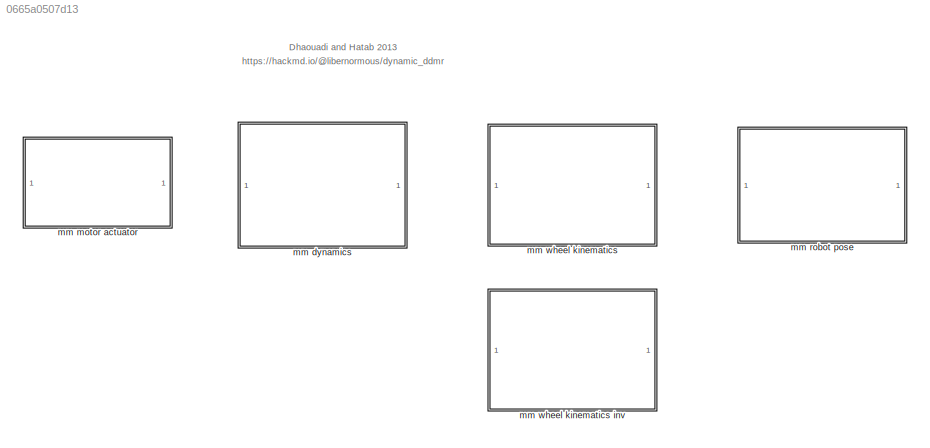
MODEL slx_0665a0507d13
KIND library
CONFIG AbsTol = auto
CONFIG EnableMultiTasking = off
CONFIG FixedStep = auto
CONFIG MaxStep = auto
CONFIG MinStep = auto
CONFIG RelTol = 1e-3
CONFIG SampleTimeConstraint = Unconstrained
CONFIG SolverName = VariableStepAuto
CONFIG StartTime = 0.0
CONFIG StopTime = 10.0
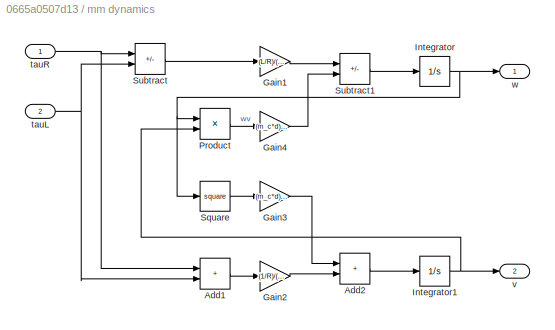
BLOCK [SubSystem] mm dynamics
BLOCK [Sum] mm dynamics/Add1
  IconShape = rectangular
BLOCK [Sum] mm dynamics/Add2
  IconShape = rectangular
BLOCK [Gain] mm dynamics/Gain1
  Gain = (L/R)/(I+2*L^2/R^2*I_w)
BLOCK [Gain] mm dynamics/Gain2
  Gain = (1/R)/(m+2/R^2*I_w)
BLOCK [Gain] mm dynamics/Gain3
  Gain = (m_c*d)/(m+2/R^2*I_w)
BLOCK [Gain] mm dynamics/Gain4
  Gain = (m_c*d)/(I+2*L^2/R^2*I_w)
BLOCK [Integrator] mm dynamics/Integrator
BLOCK [Integrator] mm dynamics/Integrator1
BLOCK [Product] mm dynamics/Product
BLOCK [Math] mm dynamics/Square
  Operator = square
BLOCK [Sum] mm dynamics/Subtract
  IconShape = rectangular
  Inputs = +-
BLOCK [Sum] mm dynamics/Subtract1
  IconShape = rectangular
  Inputs = +-
BLOCK [Inport] mm dynamics/tauL
  Port = 2
BLOCK [Inport] mm dynamics/tauR
BLOCK [Outport] mm dynamics/v
  Port = 2
BLOCK [Outport] mm dynamics/w
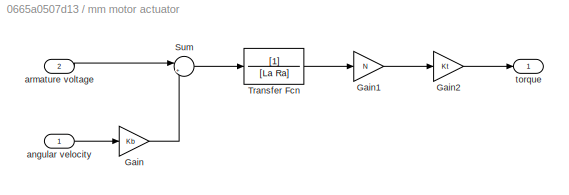
BLOCK [SubSystem] mm motor actuator
BLOCK [Gain] mm motor actuator/Gain
  Gain = Kb
BLOCK [Gain] mm motor actuator/Gain1
  Gain = N
BLOCK [Gain] mm motor actuator/Gain2
  Gain = Kt
BLOCK [Sum] mm motor actuator/Sum
  Inputs = |+-
BLOCK [TransferFcn] mm motor actuator/Transfer Fcn
  Denominator = [La Ra]
BLOCK [Inport] mm motor actuator/angular velocity
BLOCK [Inport] mm motor actuator/armature voltage
  Port = 2
BLOCK [Outport] mm motor actuator/torque
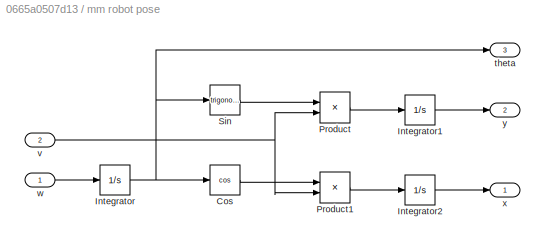
BLOCK [SubSystem] mm robot pose
BLOCK [Trigonometry] mm robot pose/Cos
  Operator = cos
BLOCK [Integrator] mm robot pose/Integrator
  InitialCondition = theta0
BLOCK [Integrator] mm robot pose/Integrator1
  InitialCondition = y0
BLOCK [Integrator] mm robot pose/Integrator2
  InitialCondition = x0
BLOCK [Product] mm robot pose/Product
BLOCK [Product] mm robot pose/Product1
BLOCK [Trigonometry] mm robot pose/Sin
BLOCK [Outport] mm robot pose/theta
  Port = 3
BLOCK [Inport] mm robot pose/v
  Port = 2
BLOCK [Inport] mm robot pose/w
BLOCK [Outport] mm robot pose/x
BLOCK [Outport] mm robot pose/y
  Port = 2
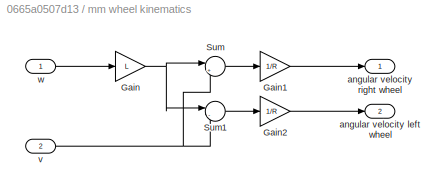
BLOCK [SubSystem] mm wheel kinematics
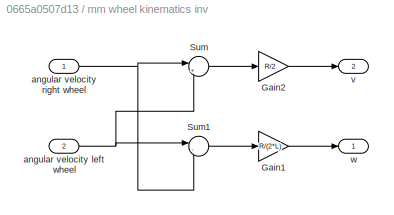
BLOCK [SubSystem] mm wheel kinematics inv
BLOCK [Gain] mm wheel kinematics inv/Gain1
  Gain = R/(2*L)
BLOCK [Gain] mm wheel kinematics inv/Gain2
  Gain = R/2
BLOCK [Sum] mm wheel kinematics inv/Sum
  Inputs = |++
BLOCK [Sum] mm wheel kinematics inv/Sum1
  Inputs = |-+
BLOCK [Inport] mm wheel kinematics inv/angular velocity left wheel
  Port = 2
BLOCK [Inport] mm wheel kinematics inv/angular velocity right wheel
BLOCK [Outport] mm wheel kinematics inv/v
  Port = 2
BLOCK [Outport] mm wheel kinematics inv/w
BLOCK [Gain] mm wheel kinematics/Gain
  Gain = L
BLOCK [Gain] mm wheel kinematics/Gain1
  Gain = 1/R
BLOCK [Gain] mm wheel kinematics/Gain2
  Gain = 1/R
BLOCK [Sum] mm wheel kinematics/Sum
  Inputs = |++
BLOCK [Sum] mm wheel kinematics/Sum1
  Inputs = |-+
BLOCK [Outport] mm wheel kinematics/angular velocity left wheel
  Port = 2
BLOCK [Outport] mm wheel kinematics/angular velocity right wheel
BLOCK [Inport] mm wheel kinematics/v
  Port = 2
BLOCK [Inport] mm wheel kinematics/w
ANNOTATION (root): Dhaouadi and Hatab 2013
ANNOTATION (root): https://hackmd.io/@libernormous/dynamic_ddmr
LINE mm dynamics/Add1:1 -> mm dynamics/Gain2:1
LINE mm dynamics/Add2:1 -> mm dynamics/Integrator1:1
LINE mm dynamics/Gain1:1 -> mm dynamics/Subtract1:1
LINE mm dynamics/Gain2:1 -> mm dynamics/Add2:2
LINE mm dynamics/Gain3:1 -> mm dynamics/Add2:1
LINE mm dynamics/Gain4:1 -> mm dynamics/Subtract1:2
NET mm dynamics/Integrator1:1 -> mm dynamics/Product:2, mm dynamics/v:1
NET mm dynamics/Integrator:1 -> mm dynamics/Product:1, mm dynamics/Square:1, mm dynamics/w:1
LINE mm dynamics/Product:1 -> mm dynamics/Gain4:1
LINE mm dynamics/Square:1 -> mm dynamics/Gain3:1
LINE mm dynamics/Subtract1:1 -> mm dynamics/Integrator:1
LINE mm dynamics/Subtract:1 -> mm dynamics/Gain1:1
NET mm dynamics/tauL:1 -> mm dynamics/Add1:2, mm dynamics/Subtract:2
NET mm dynamics/tauR:1 -> mm dynamics/Add1:1, mm dynamics/Subtract:1
LINE mm motor actuator/Gain1:1 -> mm motor actuator/Gain2:1
LINE mm motor actuator/Gain2:1 -> mm motor actuator/torque:1
LINE mm motor actuator/Gain:1 -> mm motor actuator/Sum:2
LINE mm motor actuator/Sum:1 -> mm motor actuator/Transfer Fcn:1
LINE mm motor actuator/Transfer Fcn:1 -> mm motor actuator/Gain1:1
LINE mm motor actuator/angular velocity:1 -> mm motor actuator/Gain:1
LINE mm motor actuator/armature voltage:1 -> mm motor actuator/Sum:1
LINE mm robot pose/Cos:1 -> mm robot pose/Product1:1
LINE mm robot pose/Integrator1:1 -> mm robot pose/y:1
LINE mm robot pose/Integrator2:1 -> mm robot pose/x:1
NET mm robot pose/Integrator:1 -> mm robot pose/Cos:1, mm robot pose/Sin:1, mm robot pose/theta:1
LINE mm robot pose/Product1:1 -> mm robot pose/Integrator2:1
LINE mm robot pose/Product:1 -> mm robot pose/Integrator1:1
LINE mm robot pose/Sin:1 -> mm robot pose/Product:1
NET mm robot pose/v:1 -> mm robot pose/Product1:2, mm robot pose/Product:2
LINE mm robot pose/w:1 -> mm robot pose/Integrator:1
LINE mm wheel kinematics inv/Gain1:1 -> mm wheel kinematics inv/w:1
LINE mm wheel kinematics inv/Gain2:1 -> mm wheel kinematics inv/v:1
LINE mm wheel kinematics inv/Sum1:1 -> mm wheel kinematics inv/Gain1:1
LINE mm wheel kinematics inv/Sum:1 -> mm wheel kinematics inv/Gain2:1
NET mm wheel kinematics inv/angular velocity left wheel:1 -> mm wheel kinematics inv/Sum1:1, mm wheel kinematics inv/Sum:2
NET mm wheel kinematics inv/angular velocity right wheel:1 -> mm wheel kinematics inv/Sum1:2, mm wheel kinematics inv/Sum:1
LINE mm wheel kinematics/Gain1:1 -> mm wheel kinematics/angular velocity right wheel:1
LINE mm wheel kinematics/Gain2:1 -> mm wheel kinematics/angular velocity left wheel:1
NET mm wheel kinematics/Gain:1 -> mm wheel kinematics/Sum1:1, mm wheel kinematics/Sum:1
LINE mm wheel kinematics/Sum1:1 -> mm wheel kinematics/Gain2:1
LINE mm wheel kinematics/Sum:1 -> mm wheel kinematics/Gain1:1
NET mm wheel kinematics/v:1 -> mm wheel kinematics/Sum1:2, mm wheel kinematics/Sum:2
LINE mm wheel kinematics/w:1 -> mm wheel kinematics/Gain:1
note: NET lines group one-source signal fan-out (src -> all destinations, sorted); 1:1 wires keep LINE
